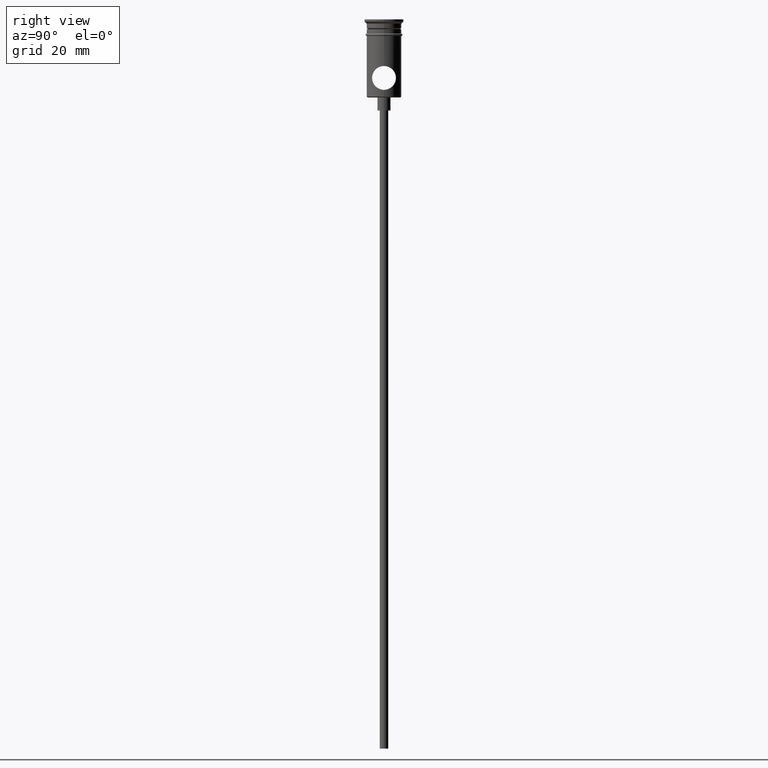
[diagram: clean part render]
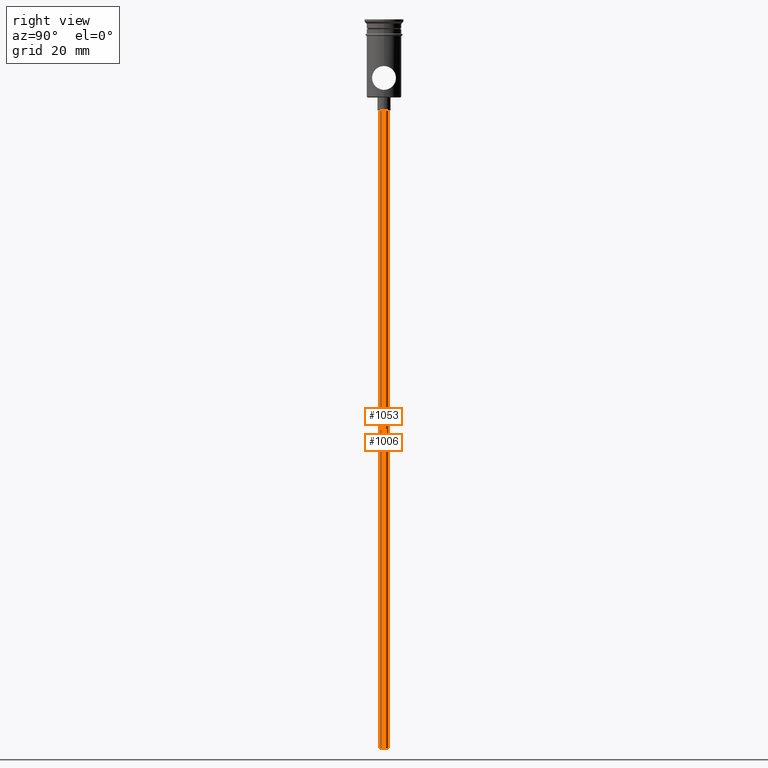
[diagram: same view with one multi-face feature highlighted, each face labeled with its STEP entity id]
A machine part, right view. The highlighted faces form ONE feature: a constant-radius fillet chain: 2 tangent blend faces with common blend radius 1 mm. The faces share edges in the B-rep.
Their STEP definitions:
[1] entity #1006 (Cylinder):
#49 = ORIENTED_EDGE ( 'NONE', *, *, #1034, .F. ) ;
#57 = AXIS2_PLACEMENT_3D ( 'NONE', #739, #1290, #422 ) ;
#87 = EDGE_LOOP ( 'NONE', ( #49, #1018, #552, #192 ) ) ;
#101 = AXIS2_PLACEMENT_3D ( 'NONE', #319, #1195, #646 ) ;
#146 = EDGE_CURVE ( 'NONE', #626, #456, #681, .T. ) ;
#175 = LINE ( 'NONE', #288, #1362 ) ;
#192 = ORIENTED_EDGE ( 'NONE', *, *, #146, .F. ) ;
#208 = CYLINDRICAL_SURFACE ( 'NONE', #57, 0.9999999999999997780 ) ;
#265 = CARTESIAN_POINT ( 'NONE',  ( -0.9999999999999997780, 1.224646799147352961E-16, -167.9999999999999716 ) ) ;
#288 = CARTESIAN_POINT ( 'NONE',  ( -0.9999999999999997780, 1.224646799147352961E-16, -167.9999999999999716 ) ) ;
#306 = DIRECTION ( 'NONE',  ( 0.000000000000000000, 0.000000000000000000, -1.000000000000000000 ) ) ;
#319 = CARTESIAN_POINT ( 'NONE',  ( 0.000000000000000000, 0.000000000000000000, -20.99999999999999645 ) ) ;
#422 = DIRECTION ( 'NONE',  ( 1.000000000000000000, 0.000000000000000000, 0.000000000000000000 ) ) ;
#431 = VERTEX_POINT ( 'NONE', #724 ) ;
#456 = VERTEX_POINT ( 'NONE', #607 ) ;
#467 = CARTESIAN_POINT ( 'NONE',  ( 0.9999999999999997780, 0.000000000000000000, -167.9999999999999716 ) ) ;
#533 = CIRCLE ( 'NONE', #101, 0.9999999999999997780 ) ;
#552 = ORIENTED_EDGE ( 'NONE', *, *, #1372, .T. ) ;
#600 = AXIS2_PLACEMENT_3D ( 'NONE', #854, #306, #985 ) ;
#607 = CARTESIAN_POINT ( 'NONE',  ( 0.9999999999999997780, 0.000000000000000000, -20.99999999999999645 ) ) ;
#626 = VERTEX_POINT ( 'NONE', #1242 ) ;
#646 = DIRECTION ( 'NONE',  ( -1.000000000000000000, 0.000000000000000000, 0.000000000000000000 ) ) ;
#681 = LINE ( 'NONE', #467, #1306 ) ;
#724 = CARTESIAN_POINT ( 'NONE',  ( -0.9999999999999997780, 1.224646799147352961E-16, -20.99999999999999645 ) ) ;
#739 = CARTESIAN_POINT ( 'NONE',  ( 0.000000000000000000, 0.000000000000000000, -167.9999999999999716 ) ) ;
#849 = FACE_OUTER_BOUND ( 'NONE', #87, .T. ) ;
#854 = CARTESIAN_POINT ( 'NONE',  ( 0.000000000000000000, 0.000000000000000000, -167.9999999999999716 ) ) ;
#856 = CIRCLE ( 'NONE', #600, 0.9999999999999997780 ) ;
#948 = VERTEX_POINT ( 'NONE', #265 ) ;
#985 = DIRECTION ( 'NONE',  ( -1.000000000000000000, 0.000000000000000000, 0.000000000000000000 ) ) ;
#988 = EDGE_CURVE ( 'NONE', #948, #431, #175, .T. ) ;
#1006 = ADVANCED_FACE ( 'NONE', ( #849 ), #208, .T. ) ;
#1018 = ORIENTED_EDGE ( 'NONE', *, *, #988, .T. ) ;
#1033 = DIRECTION ( 'NONE',  ( -0.000000000000000000, -0.000000000000000000, 1.000000000000000000 ) ) ;
#1034 = EDGE_CURVE ( 'NONE', #948, #626, #856, .T. ) ;
#1167 = DIRECTION ( 'NONE',  ( -0.000000000000000000, -0.000000000000000000, 1.000000000000000000 ) ) ;
#1195 = DIRECTION ( 'NONE',  ( 0.000000000000000000, 0.000000000000000000, -1.000000000000000000 ) ) ;
#1242 = CARTESIAN_POINT ( 'NONE',  ( 0.9999999999999997780, 0.000000000000000000, -167.9999999999999716 ) ) ;
#1290 = DIRECTION ( 'NONE',  ( -0.000000000000000000, -0.000000000000000000, 1.000000000000000000 ) ) ;
#1306 = VECTOR ( 'NONE', #1033, 1000.000000000000000 ) ;
#1362 = VECTOR ( 'NONE', #1167, 1000.000000000000000 ) ;
#1372 = EDGE_CURVE ( 'NONE', #431, #456, #533, .T. ) ;
[2] entity #1053 (Cylinder):
#81 = AXIS2_PLACEMENT_3D ( 'NONE', #1123, #1225, #580 ) ;
#119 = FACE_OUTER_BOUND ( 'NONE', #693, .T. ) ;
#146 = EDGE_CURVE ( 'NONE', #626, #456, #681, .T. ) ;
#175 = LINE ( 'NONE', #288, #1362 ) ;
#253 = CIRCLE ( 'NONE', #81, 0.9999999999999997780 ) ;
#265 = CARTESIAN_POINT ( 'NONE',  ( -0.9999999999999997780, 1.224646799147352961E-16, -167.9999999999999716 ) ) ;
#288 = CARTESIAN_POINT ( 'NONE',  ( -0.9999999999999997780, 1.224646799147352961E-16, -167.9999999999999716 ) ) ;
#346 = DIRECTION ( 'NONE',  ( -0.000000000000000000, -0.000000000000000000, 1.000000000000000000 ) ) ;
#390 = DIRECTION ( 'NONE',  ( -1.000000000000000000, 0.000000000000000000, 0.000000000000000000 ) ) ;
#431 = VERTEX_POINT ( 'NONE', #724 ) ;
#434 = EDGE_CURVE ( 'NONE', #456, #431, #1024, .T. ) ;
#456 = VERTEX_POINT ( 'NONE', #607 ) ;
#457 = CYLINDRICAL_SURFACE ( 'NONE', #1392, 0.9999999999999997780 ) ;
#467 = CARTESIAN_POINT ( 'NONE',  ( 0.9999999999999997780, 0.000000000000000000, -167.9999999999999716 ) ) ;
#532 = ORIENTED_EDGE ( 'NONE', *, *, #988, .F. ) ;
#570 = CARTESIAN_POINT ( 'NONE',  ( 0.000000000000000000, 0.000000000000000000, -167.9999999999999716 ) ) ;
#580 = DIRECTION ( 'NONE',  ( -1.000000000000000000, 0.000000000000000000, 0.000000000000000000 ) ) ;
#607 = CARTESIAN_POINT ( 'NONE',  ( 0.9999999999999997780, 0.000000000000000000, -20.99999999999999645 ) ) ;
#626 = VERTEX_POINT ( 'NONE', #1242 ) ;
#681 = LINE ( 'NONE', #467, #1306 ) ;
#693 = EDGE_LOOP ( 'NONE', ( #532, #1340, #994, #1164 ) ) ;
#724 = CARTESIAN_POINT ( 'NONE',  ( -0.9999999999999997780, 1.224646799147352961E-16, -20.99999999999999645 ) ) ;
#898 = DIRECTION ( 'NONE',  ( 1.000000000000000000, 0.000000000000000000, 0.000000000000000000 ) ) ;
#944 = CARTESIAN_POINT ( 'NONE',  ( 0.000000000000000000, 0.000000000000000000, -20.99999999999999645 ) ) ;
#948 = VERTEX_POINT ( 'NONE', #265 ) ;
#988 = EDGE_CURVE ( 'NONE', #948, #431, #175, .T. ) ;
#994 = ORIENTED_EDGE ( 'NONE', *, *, #146, .T. ) ;
#1024 = CIRCLE ( 'NONE', #1407, 0.9999999999999997780 ) ;
#1033 = DIRECTION ( 'NONE',  ( -0.000000000000000000, -0.000000000000000000, 1.000000000000000000 ) ) ;
#1053 = ADVANCED_FACE ( 'NONE', ( #119 ), #457, .T. ) ;
#1057 = DIRECTION ( 'NONE',  ( 0.000000000000000000, 0.000000000000000000, -1.000000000000000000 ) ) ;
#1118 = EDGE_CURVE ( 'NONE', #626, #948, #253, .T. ) ;
#1123 = CARTESIAN_POINT ( 'NONE',  ( 0.000000000000000000, 0.000000000000000000, -167.9999999999999716 ) ) ;
#1164 = ORIENTED_EDGE ( 'NONE', *, *, #434, .T. ) ;
#1167 = DIRECTION ( 'NONE',  ( -0.000000000000000000, -0.000000000000000000, 1.000000000000000000 ) ) ;
#1225 = DIRECTION ( 'NONE',  ( 0.000000000000000000, 0.000000000000000000, -1.000000000000000000 ) ) ;
#1242 = CARTESIAN_POINT ( 'NONE',  ( 0.9999999999999997780, 0.000000000000000000, -167.9999999999999716 ) ) ;
#1306 = VECTOR ( 'NONE', #1033, 1000.000000000000000 ) ;
#1340 = ORIENTED_EDGE ( 'NONE', *, *, #1118, .F. ) ;
#1362 = VECTOR ( 'NONE', #1167, 1000.000000000000000 ) ;
#1392 = AXIS2_PLACEMENT_3D ( 'NONE', #570, #346, #898 ) ;
#1407 = AXIS2_PLACEMENT_3D ( 'NONE', #944, #1057, #390 ) ;